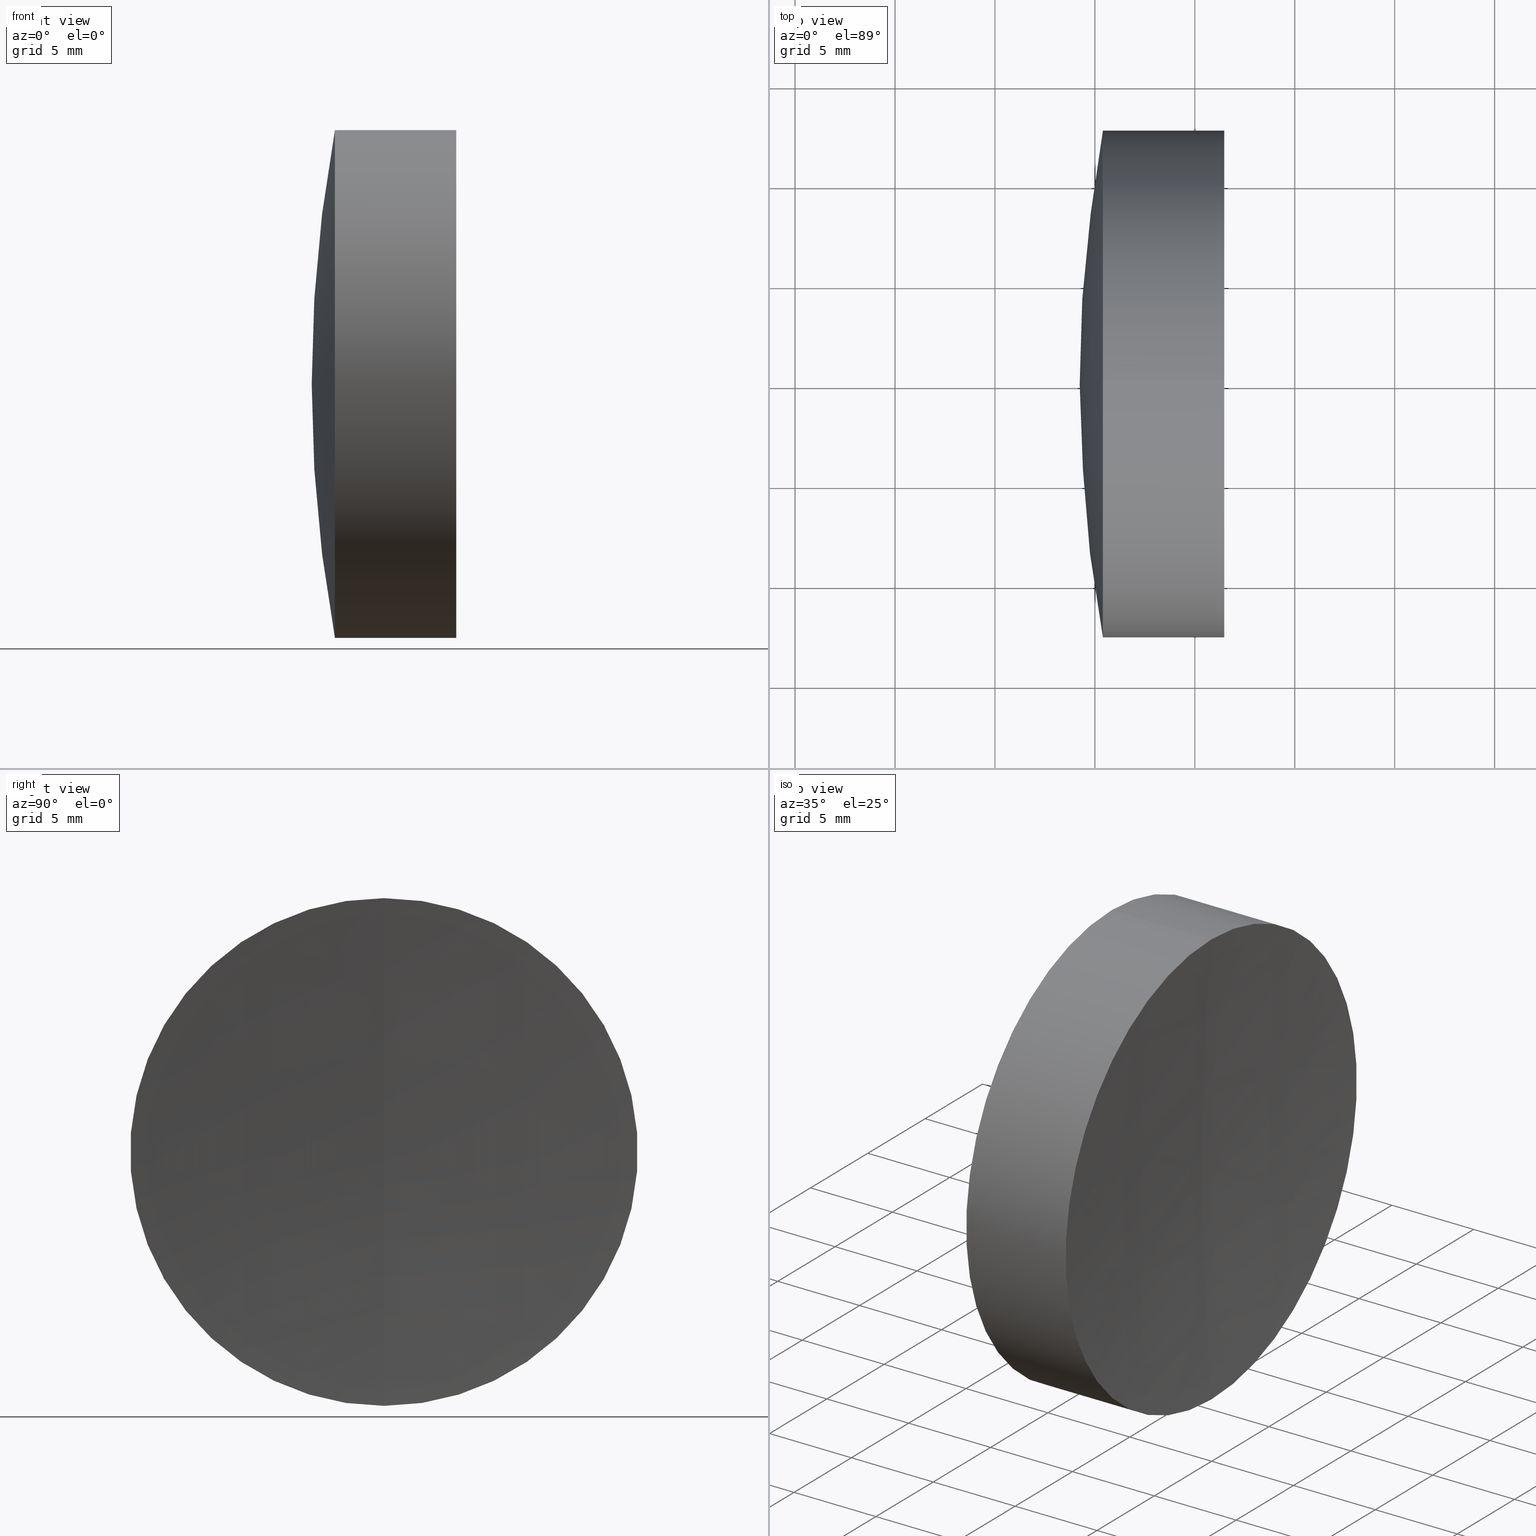
[diagram: canonical four-view strip — front | top / right | iso, engineering-drawing reading convention]
A machine part, canonical four-view strip (front | top / right | iso — engineering-drawing reading convention). The complete STEP part file that produces these views, byte-faithful:
ISO-10303-21;
HEADER;
FILE_DESCRIPTION (( 'STEP AP214' ),
    '1' );
FILE_NAME ('145171.STEP',
    '2019-06-12T01:41:24',
    ( 'user' ),
    ( '΢���й�' ),
    'SwSTEP 2.0',
    'SolidWorks 2016',
    '' );
FILE_SCHEMA (( 'AUTOMOTIVE_DESIGN' ));
ENDSEC;

DATA;
#1 = CARTESIAN_POINT ( 'NONE',  ( 242.3017424857897000, 0.0000000000000000000, 0.0000000000000000000 ) ) ;
#2 = DIRECTION ( 'NONE',  ( -0.0000000000000000000, -1.000000000000000000, -0.0000000000000000000 ) ) ;
#3 = DIRECTION ( 'NONE',  ( 0.0000000000000000000, 0.0000000000000000000, 1.000000000000000000 ) ) ;
#4 = CARTESIAN_POINT ( 'NONE',  ( -4.668257514210329100, 0.0000000000000000000, -3.765318713007809200E-014 ) ) ;
#5 = EDGE_CURVE ( 'NONE', #194, #170, #230, .T. ) ;
#6 = AXIS2_PLACEMENT_3D ( 'NONE', #20, #268, #245 ) ;
#7 = VERTEX_POINT ( 'NONE', #73 ) ;
#8 = DIRECTION ( 'NONE',  ( 0.0000000000000000000, 1.000000000000000000, -0.0000000000000000000 ) ) ;
#9 = EDGE_LOOP ( 'NONE', ( #334, #251, #62, #301 ) ) ;
#10 = VECTOR ( 'NONE', #180, 1000.000000000000000 ) ;
#11 =( NAMED_UNIT ( * ) PLANE_ANGLE_UNIT ( ) SI_UNIT ( $, .RADIAN. ) );
#12 = AXIS2_PLACEMENT_3D ( 'NONE', #238, #54, #212 ) ;
#13 = FILL_AREA_STYLE_COLOUR ( '', #223 ) ;
#14 = CARTESIAN_POINT ( 'NONE',  ( -0.8160621761658039000, 0.0000000000000000000, 12.70000000000001400 ) ) ;
#15 = CIRCLE ( 'NONE', #42, 12.70000000000005300 ) ;
#16 = EDGE_CURVE ( 'NONE', #194, #93, #87, .T. ) ;
#17 = CIRCLE ( 'NONE', #280, 93.10999999999999900 ) ;
#18 = ADVANCED_FACE ( 'NONE', ( #162 ), #291, .T. ) ;
#19 = PRODUCT_CONTEXT ( 'NONE', #161, 'mechanical' ) ;
#20 = CARTESIAN_POINT ( 'NONE',  ( -4.668257514210329100, 0.0000000000000000000, -3.765318713007809200E-014 ) ) ;
#21 = AXIS2_PLACEMENT_3D ( 'NONE', #4, #167, #330 ) ;
#22 = ORIENTED_EDGE ( 'NONE', *, *, #38, .T. ) ;
#23 = ORIENTED_EDGE ( 'NONE', *, *, #214, .F. ) ;
#24 = UNCERTAINTY_MEASURE_WITH_UNIT (LENGTH_MEASURE( 1.000000000000000100E-005 ), #288, 'distance_accuracy_value', 'NONE');
#25 = DIRECTION ( 'NONE',  ( 0.0000000000000000000, 0.0000000000000000000, 1.000000000000000000 ) ) ;
#26 = VECTOR ( 'NONE', #263, 1000.000000000000000 ) ;
#27 = DIRECTION ( 'NONE',  ( 0.0000000000000000000, 1.000000000000000000, 0.0000000000000000000 ) ) ;
#28 = DIRECTION ( 'NONE',  ( 0.0000000000000000000, 0.0000000000000000000, 1.000000000000000000 ) ) ;
#29 =( NAMED_UNIT ( * ) PLANE_ANGLE_UNIT ( ) SI_UNIT ( $, .RADIAN. ) );
#30 = DIRECTION ( 'NONE',  ( 0.0000000000000000000, 1.000000000000000000, 0.0000000000000000000 ) ) ;
#31 = ORIENTED_EDGE ( 'NONE', *, *, #214, .T. ) ;
#32 = FILL_AREA_STYLE_COLOUR ( '', #159 ) ;
#33 = ORIENTED_EDGE ( 'NONE', *, *, #76, .F. ) ;
#34 = ORIENTED_EDGE ( 'NONE', *, *, #5, .F. ) ;
#35 = MANIFOLD_SOLID_BREP ( '��ת2', #333 ) ;
#36 = FACE_OUTER_BOUND ( 'NONE', #246, .T. ) ;
#37 = PRODUCT_DEFINITION ( 'δ֪', '', #59, #285 ) ;
#38 = EDGE_CURVE ( 'NONE', #114, #129, #231, .T. ) ;
#39 = FACE_OUTER_BOUND ( 'NONE', #304, .T. ) ;
#40 = ORIENTED_EDGE ( 'NONE', *, *, #198, .F. ) ;
#41 = CARTESIAN_POINT ( 'NONE',  ( -0.5519199926577972300, 0.0000000000000000000, 0.0000000000000000000 ) ) ;
#42 = AXIS2_PLACEMENT_3D ( 'NONE', #107, #274, #82 ) ;
#43 = CIRCLE ( 'NONE', #248, 12.70000000000001200 ) ;
#44 = SURFACE_STYLE_USAGE ( .BOTH. , #232 ) ;
#45 = CARTESIAN_POINT ( 'NONE',  ( -0.5519199926577972300, 0.0000000000000000000, 12.70000000000005400 ) ) ;
#46 = DIRECTION ( 'NONE',  ( -1.000000000000000000, -0.0000000000000000000, -0.0000000000000000000 ) ) ;
#47 = DIRECTION ( 'NONE',  ( 0.0000000000000000000, 1.224646799147353500E-016, -1.000000000000000000 ) ) ;
#48 = ORIENTED_EDGE ( 'NONE', *, *, #148, .T. ) ;
#49 = ADVANCED_FACE ( 'NONE', ( #96 ), #243, .T. ) ;
#50 = ORIENTED_EDGE ( 'NONE', *, *, #168, .F. ) ;
#51 = EDGE_LOOP ( 'NONE', ( #34, #33, #146 ) ) ;
#52 = DIRECTION ( 'NONE',  ( 0.0000000000000000000, -1.224646799147353200E-016, 1.000000000000000000 ) ) ;
#53 = EDGE_CURVE ( 'NONE', #7, #152, #311, .T. ) ;
#54 = DIRECTION ( 'NONE',  ( 0.0000000000000000000, 0.0000000000000000000, 1.000000000000000000 ) ) ;
#55 = CIRCLE ( 'NONE', #277, 93.10999999999999900 ) ;
#56 =( NAMED_UNIT ( * ) PLANE_ANGLE_UNIT ( ) SI_UNIT ( $, .RADIAN. ) );
#57 = DIRECTION ( 'NONE',  ( 0.0000000000000000000, 0.0000000000000000000, 1.000000000000000000 ) ) ;
#58 = CARTESIAN_POINT ( 'NONE',  ( -4.668257514210329100, 0.0000000000000000000, -3.765318713007809200E-014 ) ) ;
#59 = PRODUCT_DEFINITION_FORMATION_WITH_SPECIFIED_SOURCE ( '�κ�', '', #324, .NOT_KNOWN. ) ;
#60 = SURFACE_STYLE_USAGE ( .BOTH. , #244 ) ;
#61 = DIRECTION ( 'NONE',  ( -1.000000000000000000, -0.0000000000000000000, -0.0000000000000000000 ) ) ;
#62 = ORIENTED_EDGE ( 'NONE', *, *, #253, .F. ) ;
#63 = ORIENTED_EDGE ( 'NONE', *, *, #168, .T. ) ;
#64 = EDGE_CURVE ( 'NONE', #119, #145, #172, .T. ) ;
#65 = CIRCLE ( 'NONE', #225, 12.70000000000001500 ) ;
#66 = STYLED_ITEM ( 'NONE', ( #143 ), #254 ) ;
#67 = MECHANICAL_DESIGN_GEOMETRIC_PRESENTATION_REPRESENTATION (  '', ( #220 ), #83 ) ;
#68 = CARTESIAN_POINT ( 'NONE',  ( 85.40345372146899200, 0.0000000000000000000, 0.0000000000000000000 ) ) ;
#69 = DIRECTION ( 'NONE',  ( 0.0000000000000000000, 0.0000000000000000000, 1.000000000000000000 ) ) ;
#70 = CARTESIAN_POINT ( 'NONE',  ( -0.5519199926577972300, 1.555301434917145300E-015, -12.70000000000005400 ) ) ;
#71 = EDGE_LOOP ( 'NONE', ( #339, #319, #228, #103 ) ) ;
#72 = PRODUCT_RELATED_PRODUCT_CATEGORY ( 'part', '', ( #324 ) ) ;
#73 = CARTESIAN_POINT ( 'NONE',  ( 91.47548615089289100, 0.0000000000000000000, -12.70000000000005400 ) ) ;
#74 = CARTESIAN_POINT ( 'NONE',  ( 91.47548615089287700, 0.0000000000000000000, 0.0000000000000000000 ) ) ;
#75 = ADVANCED_FACE ( 'NONE', ( #36 ), #105, .F. ) ;
#76 = EDGE_CURVE ( 'NONE', #7, #194, #178, .T. ) ;
#77 = PRESENTATION_LAYER_ASSIGNMENT (  '', '', ( #66 ) ) ;
#78 = ORIENTED_EDGE ( 'NONE', *, *, #132, .T. ) ;
#79 = CARTESIAN_POINT ( 'NONE',  ( 87.57155005280489500, 0.0000000000000000000, 0.0000000000000000000 ) ) ;
#80 = DIRECTION ( 'NONE',  ( 0.0000000000000000000, 0.0000000000000000000, 1.000000000000000000 ) ) ;
#81 = DIRECTION ( 'NONE',  ( -0.0000000000000000000, 1.000000000000000000, 1.224646799147353200E-016 ) ) ;
#82 = DIRECTION ( 'NONE',  ( 0.0000000000000000000, 0.0000000000000000000, 1.000000000000000000 ) ) ;
#83 =( GEOMETRIC_REPRESENTATION_CONTEXT ( 3 ) GLOBAL_UNCERTAINTY_ASSIGNED_CONTEXT ( ( #126 ) ) GLOBAL_UNIT_ASSIGNED_CONTEXT ( ( #204, #11, #179 ) ) REPRESENTATION_CONTEXT ( 'NONE', 'WORKASPACE' ) );
#84 = EDGE_CURVE ( 'NONE', #110, #114, #302, .T. ) ;
#85 = CIRCLE ( 'NONE', #315, 12.70000000000005300 ) ;
#86 = EDGE_LOOP ( 'NONE', ( #23, #183, #22 ) ) ;
#87 = LINE ( 'NONE', #45, #10 ) ;
#88 = CARTESIAN_POINT ( 'NONE',  ( -0.8160621761658039000, 1.555301434917140200E-015, -12.70000000000001400 ) ) ;
#89 = EDGE_CURVE ( 'NONE', #7, #170, #325, .T. ) ;
#90 = CARTESIAN_POINT ( 'NONE',  ( 85.40345372146899200, 0.0000000000000000000, 0.0000000000000000000 ) ) ;
#91 = DIRECTION ( 'NONE',  ( 0.0000000000000000000, 0.0000000000000000000, 1.000000000000000000 ) ) ;
#92 = ORIENTED_EDGE ( 'NONE', *, *, #5, .T. ) ;
#93 = VERTEX_POINT ( 'NONE', #279 ) ;
#94 = MECHANICAL_DESIGN_GEOMETRIC_PRESENTATION_REPRESENTATION (  '', ( #66 ), #112 ) ;
#95 = DIRECTION ( 'NONE',  ( 0.0000000000000000000, 1.000000000000000000, -0.0000000000000000000 ) ) ;
#96 = FACE_OUTER_BOUND ( 'NONE', #9, .T. ) ;
#97 = FILL_AREA_STYLE ('',( #13 ) ) ;
#98 = CLOSED_SHELL ( 'NONE', ( #157, #133, #18, #346, #287, #316 ) ) ;
#99 = AXIS2_PLACEMENT_3D ( 'NONE', #282, #95, #261 ) ;
#100 = DIRECTION ( 'NONE',  ( -1.000000000000000000, -0.0000000000000000000, -0.0000000000000000000 ) ) ;
#101 = ADVANCED_FACE ( 'NONE', ( #260 ), #111, .T. ) ;
#102 = ORIENTED_EDGE ( 'NONE', *, *, #84, .F. ) ;
#103 = ORIENTED_EDGE ( 'NONE', *, *, #163, .F. ) ;
#104 =( NAMED_UNIT ( * ) PLANE_ANGLE_UNIT ( ) SI_UNIT ( $, .RADIAN. ) );
#105 = SPHERICAL_SURFACE ( 'NONE', #174, 93.10999999999999900 ) ;
#106 = CARTESIAN_POINT ( 'NONE',  ( -0.8160621761658039000, 0.0000000000000000000, 0.0000000000000000000 ) ) ;
#107 = CARTESIAN_POINT ( 'NONE',  ( 87.57155005280489500, 0.0000000000000000000, 0.0000000000000000000 ) ) ;
#108 = EDGE_CURVE ( 'NONE', #114, #110, #43, .T. ) ;
#109 = FACE_OUTER_BOUND ( 'NONE', #283, .T. ) ;
#110 = VERTEX_POINT ( 'NONE', #147 ) ;
#111 = CYLINDRICAL_SURFACE ( 'NONE', #265, 12.70000000000005400 ) ;
#112 =( GEOMETRIC_REPRESENTATION_CONTEXT ( 3 ) GLOBAL_UNCERTAINTY_ASSIGNED_CONTEXT ( ( #190 ) ) GLOBAL_UNIT_ASSIGNED_CONTEXT ( ( #219, #29, #192 ) ) REPRESENTATION_CONTEXT ( 'NONE', 'WORKASPACE' ) );
#113 = CIRCLE ( 'NONE', #342, 70.00000000000001400 ) ;
#114 = VERTEX_POINT ( 'NONE', #116 ) ;
#115 = AXIS2_PLACEMENT_3D ( 'NONE', #340, #149, #305 ) ;
#116 = CARTESIAN_POINT ( 'NONE',  ( 85.40345372146899200, 0.0000000000000000000, -12.69999999999995800 ) ) ;
#117 = VERTEX_POINT ( 'NONE', #317 ) ;
#118 = EDGE_LOOP ( 'NONE', ( #50, #169, #222 ) ) ;
#119 = VERTEX_POINT ( 'NONE', #278 ) ;
#120 = DIRECTION ( 'NONE',  ( -1.000000000000000000, -0.0000000000000000000, -0.0000000000000000000 ) ) ;
#121 = CIRCLE ( 'NONE', #321, 12.70000000000005400 ) ;
#122 = FACE_OUTER_BOUND ( 'NONE', #51, .T. ) ;
#123 = CARTESIAN_POINT ( 'NONE',  ( 87.57155005280489500, 0.0000000000000000000, 0.0000000000000000000 ) ) ;
#124 = EDGE_CURVE ( 'NONE', #119, #114, #134, .T. ) ;
#125 = DIRECTION ( 'NONE',  ( -1.000000000000000000, -0.0000000000000000000, -0.0000000000000000000 ) ) ;
#126 = UNCERTAINTY_MEASURE_WITH_UNIT (LENGTH_MEASURE( 1.000000000000000100E-005 ), #204, 'distance_accuracy_value', 'NONE');
#127 = DIRECTION ( 'NONE',  ( 0.0000000000000000000, 0.0000000000000000000, -1.000000000000000000 ) ) ;
#128 = DIRECTION ( 'NONE',  ( -1.000000000000000000, -0.0000000000000000000, -0.0000000000000000000 ) ) ;
#129 = VERTEX_POINT ( 'NONE', #205 ) ;
#130 = VERTEX_POINT ( 'NONE', #345 ) ;
#131 = DIRECTION ( 'NONE',  ( 0.0000000000000000000, 0.0000000000000000000, 1.000000000000000000 ) ) ;
#132 = EDGE_CURVE ( 'NONE', #145, #110, #336, .T. ) ;
#133 = ADVANCED_FACE ( 'NONE', ( #252 ), #341, .T. ) ;
#134 = LINE ( 'NONE', #88, #270 ) ;
#135 = SURFACE_STYLE_USAGE ( .BOTH. , #322 ) ;
#136 = CARTESIAN_POINT ( 'NONE',  ( 91.47548615089289100, -1.555301434917145500E-015, 12.70000000000005400 ) ) ;
#137 = FILL_AREA_STYLE ('',( #292 ) ) ;
#138 = DIRECTION ( 'NONE',  ( -0.0000000000000000000, -1.000000000000000000, -0.0000000000000000000 ) ) ;
#139 = CARTESIAN_POINT ( 'NONE',  ( 87.57155005280489500, 1.555301434917143000E-015, -12.70000000000007400 ) ) ;
#140 = FILL_AREA_STYLE ('',( #32 ) ) ;
#141 = PRODUCT_DEFINITION_SHAPE ( 'NONE', 'NONE',  #37 ) ;
#142 = AXIS2_PLACEMENT_3D ( 'NONE', #123, #281, #91 ) ;
#143 = PRESENTATION_STYLE_ASSIGNMENT (( #60 ) ) ;
#144 = EDGE_CURVE ( 'NONE', #130, #152, #55, .T. ) ;
#145 = VERTEX_POINT ( 'NONE', #329 ) ;
#146 = ORIENTED_EDGE ( 'NONE', *, *, #89, .T. ) ;
#147 = CARTESIAN_POINT ( 'NONE',  ( 85.40345372146899200, -1.555301434917133500E-015, 12.70000000000001000 ) ) ;
#148 = EDGE_CURVE ( 'NONE', #145, #119, #65, .T. ) ;
#149 = DIRECTION ( 'NONE',  ( -1.000000000000000000, -0.0000000000000000000, -0.0000000000000000000 ) ) ;
#150 = PRESENTATION_STYLE_ASSIGNMENT (( #135 ) ) ;
#151 = AXIS2_PLACEMENT_3D ( 'NONE', #166, #138, #294 ) ;
#152 = VERTEX_POINT ( 'NONE', #139 ) ;
#153 = CARTESIAN_POINT ( 'NONE',  ( -0.5519199926577972300, 0.0000000000000000000, 0.0000000000000000000 ) ) ;
#154 = AXIS2_PLACEMENT_3D ( 'NONE', #153, #125, #284 ) ;
#155 = FACE_OUTER_BOUND ( 'NONE', #118, .T. ) ;
#156 = CARTESIAN_POINT ( 'NONE',  ( 154.2417424857897000, 0.0000000000000000000, 5.060151870744320700E-014 ) ) ;
#157 = ADVANCED_FACE ( 'NONE', ( #155 ), #202, .T. ) ;
#158 = DIRECTION ( 'NONE',  ( -0.0000000000000000000, 1.000000000000000000, 1.224646799147353200E-016 ) ) ;
#159 = COLOUR_RGB ( '',1.000000000000000000, 1.000000000000000000, 1.000000000000000000 ) ;
#160 = ORIENTED_EDGE ( 'NONE', *, *, #229, .T. ) ;
#161 = APPLICATION_CONTEXT ( 'automotive_design' ) ;
#162 = FACE_OUTER_BOUND ( 'NONE', #300, .T. ) ;
#163 = EDGE_CURVE ( 'NONE', #152, #93, #85, .T. ) ;
#164 = DIRECTION ( 'NONE',  ( 0.0000000000000000000, 0.0000000000000000000, -1.000000000000000000 ) ) ;
#165 = CARTESIAN_POINT ( 'NONE',  ( -4.668257514210329100, 0.0000000000000000000, -3.765318713007809200E-014 ) ) ;
#166 = CARTESIAN_POINT ( 'NONE',  ( 242.3017424857897000, 0.0000000000000000000, 0.0000000000000000000 ) ) ;
#167 = DIRECTION ( 'NONE',  ( 0.0000000000000000000, -1.000000000000000000, 0.0000000000000000000 ) ) ;
#168 = EDGE_CURVE ( 'NONE', #117, #145, #286, .T. ) ;
#169 = ORIENTED_EDGE ( 'NONE', *, *, #184, .T. ) ;
#170 = VERTEX_POINT ( 'NONE', #242 ) ;
#171 =( GEOMETRIC_REPRESENTATION_CONTEXT ( 3 ) GLOBAL_UNCERTAINTY_ASSIGNED_CONTEXT ( ( #275 ) ) GLOBAL_UNIT_ASSIGNED_CONTEXT ( ( #241, #56, #213 ) ) REPRESENTATION_CONTEXT ( 'NONE', 'WORKASPACE' ) );
#172 = CIRCLE ( 'NONE', #142, 12.70000000000001500 ) ;
#173 = ORIENTED_EDGE ( 'NONE', *, *, #163, .T. ) ;
#174 = AXIS2_PLACEMENT_3D ( 'NONE', #343, #309, #259 ) ;
#175 = DIRECTION ( 'NONE',  ( 0.0000000000000000000, 0.0000000000000000000, 1.000000000000000000 ) ) ;
#176 = FACE_OUTER_BOUND ( 'NONE', #86, .T. ) ;
#177 = EDGE_LOOP ( 'NONE', ( #40, #92, #235 ) ) ;
#178 = CIRCLE ( 'NONE', #115, 12.70000000000005400 ) ;
#179 =( NAMED_UNIT ( * ) SI_UNIT ( $, .STERADIAN. ) SOLID_ANGLE_UNIT ( ) );
#180 = DIRECTION ( 'NONE',  ( -1.000000000000000000, -0.0000000000000000000, -0.0000000000000000000 ) ) ;
#181 = ADVANCED_FACE ( 'NONE', ( #209 ), #197, .F. ) ;
#182 = SPHERICAL_SURFACE ( 'NONE', #224, 70.00000000000001400 ) ;
#183 = ORIENTED_EDGE ( 'NONE', *, *, #84, .T. ) ;
#184 = EDGE_CURVE ( 'NONE', #117, #119, #17, .T. ) ;
#185 = APPLICATION_CONTEXT ( 'automotive_design' ) ;
#186 = VECTOR ( 'NONE', #100, 1000.000000000000000 ) ;
#187 = APPLICATION_PROTOCOL_DEFINITION ( 'draft international standard', 'automotive_design', 1998, #161 ) ;
#188 = CARTESIAN_POINT ( 'NONE',  ( -4.668257514210329100, 0.0000000000000000000, -3.765318713007809200E-014 ) ) ;
#189 = AXIS2_PLACEMENT_3D ( 'NONE', #106, #328, #80 ) ;
#190 = UNCERTAINTY_MEASURE_WITH_UNIT (LENGTH_MEASURE( 1.000000000000000100E-005 ), #219, 'distance_accuracy_value', 'NONE');
#191 = DIRECTION ( 'NONE',  ( -1.000000000000000000, -0.0000000000000000000, -0.0000000000000000000 ) ) ;
#192 =( NAMED_UNIT ( * ) SI_UNIT ( $, .STERADIAN. ) SOLID_ANGLE_UNIT ( ) );
#193 = AXIS2_PLACEMENT_3D ( 'NONE', #90, #256, #69 ) ;
#194 = VERTEX_POINT ( 'NONE', #136 ) ;
#195 = ORIENTED_EDGE ( 'NONE', *, *, #144, .F. ) ;
#196 = ORIENTED_EDGE ( 'NONE', *, *, #108, .T. ) ;
#197 = SPHERICAL_SURFACE ( 'NONE', #298, 151.3600000000000100 ) ;
#198 = EDGE_CURVE ( 'NONE', #194, #7, #121, .T. ) ;
#199 = ORIENTED_EDGE ( 'NONE', *, *, #253, .T. ) ;
#200 = CARTESIAN_POINT ( 'NONE',  ( 242.3017424857897000, 0.0000000000000000000, 0.0000000000000000000 ) ) ;
#201 = AXIS2_PLACEMENT_3D ( 'NONE', #233, #264, #47 ) ;
#202 = SPHERICAL_SURFACE ( 'NONE', #250, 93.10999999999999900 ) ;
#203 = AXIS2_PLACEMENT_3D ( 'NONE', #58, #27, #272 ) ;
#204 =( LENGTH_UNIT ( ) NAMED_UNIT ( * ) SI_UNIT ( .MILLI., .METRE. ) );
#205 = CARTESIAN_POINT ( 'NONE',  ( 84.24174248578968600, 0.0000000000000000000, 4.631525491042747000E-014 ) ) ;
#206 = DIRECTION ( 'NONE',  ( 0.0000000000000000000, 1.224646799147353200E-016, -1.000000000000000000 ) ) ;
#207 = AXIS2_PLACEMENT_3D ( 'NONE', #200, #8, #175 ) ;
#208 = EDGE_LOOP ( 'NONE', ( #48, #338, #102, #332 ) ) ;
#209 = FACE_OUTER_BOUND ( 'NONE', #177, .T. ) ;
#210 = CARTESIAN_POINT ( 'NONE',  ( -0.8160621761658039000, 0.0000000000000000000, 0.0000000000000000000 ) ) ;
#211 = ADVANCED_FACE ( 'NONE', ( #335 ), #247, .F. ) ;
#212 = DIRECTION ( 'NONE',  ( 1.000000000000000000, 0.0000000000000000000, 0.0000000000000000000 ) ) ;
#213 =( NAMED_UNIT ( * ) SI_UNIT ( $, .STERADIAN. ) SOLID_ANGLE_UNIT ( ) );
#214 = EDGE_CURVE ( 'NONE', #110, #129, #113, .T. ) ;
#215 = DIRECTION ( 'NONE',  ( -1.000000000000000000, -0.0000000000000000000, -0.0000000000000000000 ) ) ;
#216 = ORIENTED_EDGE ( 'NONE', *, *, #144, .T. ) ;
#217 = DIRECTION ( 'NONE',  ( 0.0000000000000000000, 0.0000000000000000000, -1.000000000000000000 ) ) ;
#218 = CARTESIAN_POINT ( 'NONE',  ( 87.57155005280489500, 0.0000000000000000000, 0.0000000000000000000 ) ) ;
#219 =( LENGTH_UNIT ( ) NAMED_UNIT ( * ) SI_UNIT ( .MILLI., .METRE. ) );
#220 = STYLED_ITEM ( 'NONE', ( #308 ), #35 ) ;
#221 = SURFACE_STYLE_FILL_AREA ( #137 ) ;
#222 = ORIENTED_EDGE ( 'NONE', *, *, #148, .F. ) ;
#223 = COLOUR_RGB ( '',1.000000000000000000, 1.000000000000000000, 1.000000000000000000 ) ;
#224 = AXIS2_PLACEMENT_3D ( 'NONE', #326, #2, #217 ) ;
#225 = AXIS2_PLACEMENT_3D ( 'NONE', #218, #191, #28 ) ;
#226 = DIRECTION ( 'NONE',  ( -1.000000000000000000, -0.0000000000000000000, -0.0000000000000000000 ) ) ;
#227 = DIRECTION ( 'NONE',  ( 0.0000000000000000000, 0.0000000000000000000, 1.000000000000000000 ) ) ;
#228 = ORIENTED_EDGE ( 'NONE', *, *, #16, .T. ) ;
#229 = EDGE_CURVE ( 'NONE', #130, #93, #299, .T. ) ;
#230 = CIRCLE ( 'NONE', #201, 151.3600000000000100 ) ;
#231 = CIRCLE ( 'NONE', #99, 70.00000000000001400 ) ;
#232 = SURFACE_SIDE_STYLE ('',( #239 ) ) ;
#233 = CARTESIAN_POINT ( 'NONE',  ( 242.3017424857897000, 0.0000000000000000000, 0.0000000000000000000 ) ) ;
#234 = DIRECTION ( 'NONE',  ( 0.0000000000000000000, 0.0000000000000000000, 1.000000000000000000 ) ) ;
#235 = ORIENTED_EDGE ( 'NONE', *, *, #89, .F. ) ;
#236 = SURFACE_STYLE_FILL_AREA ( #140 ) ;
#237 = AXIS2_PLACEMENT_3D ( 'NONE', #313, #344, #127 ) ;
#238 = CARTESIAN_POINT ( 'NONE',  ( 0.0000000000000000000, 0.0000000000000000000, 0.0000000000000000000 ) ) ;
#239 = SURFACE_STYLE_FILL_AREA ( #97 ) ;
#240 = DIRECTION ( 'NONE',  ( 0.0000000000000000000, 0.0000000000000000000, -1.000000000000000000 ) ) ;
#241 =( LENGTH_UNIT ( ) NAMED_UNIT ( * ) SI_UNIT ( .MILLI., .METRE. ) );
#242 = CARTESIAN_POINT ( 'NONE',  ( 90.94174248578967500, 0.0000000000000000000, -9.268126975947171000E-015 ) ) ;
#243 = CYLINDRICAL_SURFACE ( 'NONE', #154, 12.70000000000005400 ) ;
#244 = SURFACE_SIDE_STYLE ('',( #236 ) ) ;
#245 = DIRECTION ( 'NONE',  ( 0.0000000000000000000, 0.0000000000000000000, 1.000000000000000000 ) ) ;
#246 = EDGE_LOOP ( 'NONE', ( #195, #160, #199 ) ) ;
#247 = SPHERICAL_SURFACE ( 'NONE', #6, 93.10999999999999900 ) ;
#248 = AXIS2_PLACEMENT_3D ( 'NONE', #68, #226, #234 ) ;
#249 = CYLINDRICAL_SURFACE ( 'NONE', #189, 12.70000000000001400 ) ;
#250 = AXIS2_PLACEMENT_3D ( 'NONE', #165, #30, #3 ) ;
#251 = ORIENTED_EDGE ( 'NONE', *, *, #53, .T. ) ;
#252 = FACE_OUTER_BOUND ( 'NONE', #208, .T. ) ;
#253 = EDGE_CURVE ( 'NONE', #93, #152, #15, .T. ) ;
#254 = MANIFOLD_SOLID_BREP ( '��ת1', #98 ) ;
#255 = ORIENTED_EDGE ( 'NONE', *, *, #38, .F. ) ;
#256 = DIRECTION ( 'NONE',  ( -1.000000000000000000, -0.0000000000000000000, -0.0000000000000000000 ) ) ;
#257 = ORIENTED_EDGE ( 'NONE', *, *, #229, .F. ) ;
#258 = PRESENTATION_LAYER_ASSIGNMENT (  '', '', ( #220 ) ) ;
#259 = DIRECTION ( 'NONE',  ( 0.0000000000000000000, 0.0000000000000000000, 1.000000000000000000 ) ) ;
#260 = FACE_OUTER_BOUND ( 'NONE', #71, .T. ) ;
#261 = DIRECTION ( 'NONE',  ( 0.0000000000000000000, 0.0000000000000000000, 1.000000000000000000 ) ) ;
#262 = STYLED_ITEM ( 'NONE', ( #150 ), #310 ) ;
#263 = DIRECTION ( 'NONE',  ( -1.000000000000000000, -0.0000000000000000000, -0.0000000000000000000 ) ) ;
#264 = DIRECTION ( 'NONE',  ( 0.0000000000000000000, -1.000000000000000000, -1.224646799147353200E-016 ) ) ;
#265 = AXIS2_PLACEMENT_3D ( 'NONE', #41, #120, #227 ) ;
#266 = ORIENTED_EDGE ( 'NONE', *, *, #64, .T. ) ;
#267 = ADVANCED_FACE ( 'NONE', ( #122 ), #331, .F. ) ;
#268 = DIRECTION ( 'NONE',  ( 0.0000000000000000000, 1.000000000000000000, 0.0000000000000000000 ) ) ;
#269 = AXIS2_PLACEMENT_3D ( 'NONE', #188, #323, #164 ) ;
#270 = VECTOR ( 'NONE', #46, 1000.000000000000000 ) ;
#271 =( NAMED_UNIT ( * ) SI_UNIT ( $, .STERADIAN. ) SOLID_ANGLE_UNIT ( ) );
#272 = DIRECTION ( 'NONE',  ( 0.0000000000000000000, 0.0000000000000000000, 1.000000000000000000 ) ) ;
#273 = DIRECTION ( 'NONE',  ( 0.0000000000000000000, -1.224646799147353200E-016, 1.000000000000000000 ) ) ;
#274 = DIRECTION ( 'NONE',  ( -1.000000000000000000, -0.0000000000000000000, -0.0000000000000000000 ) ) ;
#275 = UNCERTAINTY_MEASURE_WITH_UNIT (LENGTH_MEASURE( 1.000000000000000100E-005 ), #241, 'distance_accuracy_value', 'NONE');
#276 = PRESENTATION_LAYER_ASSIGNMENT (  '', '', ( #262 ) ) ;
#277 = AXIS2_PLACEMENT_3D ( 'NONE', #295, #81, #273 ) ;
#278 = CARTESIAN_POINT ( 'NONE',  ( 87.57155005280489500, 1.555301434917140600E-015, -12.70000000000001700 ) ) ;
#279 = CARTESIAN_POINT ( 'NONE',  ( 87.57155005280489500, 0.0000000000000000000, 12.70000000000003700 ) ) ;
#280 = AXIS2_PLACEMENT_3D ( 'NONE', #320, #158, #52 ) ;
#281 = DIRECTION ( 'NONE',  ( -1.000000000000000000, -0.0000000000000000000, -0.0000000000000000000 ) ) ;
#282 = CARTESIAN_POINT ( 'NONE',  ( 154.2417424857897000, 0.0000000000000000000, 5.060151870744320700E-014 ) ) ;
#283 = EDGE_LOOP ( 'NONE', ( #337, #63, #307 ) ) ;
#284 = DIRECTION ( 'NONE',  ( 0.0000000000000000000, 0.0000000000000000000, 1.000000000000000000 ) ) ;
#285 = PRODUCT_DEFINITION_CONTEXT ( 'detailed design', #185, 'design' ) ;
#286 = CIRCLE ( 'NONE', #269, 93.10999999999999900 ) ;
#287 = ADVANCED_FACE ( 'NONE', ( #39 ), #249, .T. ) ;
#288 =( LENGTH_UNIT ( ) NAMED_UNIT ( * ) SI_UNIT ( .MILLI., .METRE. ) );
#289 = COLOUR_RGB ( '',1.000000000000000000, 1.000000000000000000, 1.000000000000000000 ) ;
#290 = EDGE_LOOP ( 'NONE', ( #257, #216, #173 ) ) ;
#291 = SPHERICAL_SURFACE ( 'NONE', #237, 70.00000000000001400 ) ;
#292 = FILL_AREA_STYLE_COLOUR ( '', #289 ) ;
#293 = MECHANICAL_DESIGN_GEOMETRIC_PRESENTATION_REPRESENTATION (  '', ( #262 ), #312 ) ;
#294 = DIRECTION ( 'NONE',  ( 0.0000000000000000000, 0.0000000000000000000, -1.000000000000000000 ) ) ;
#295 = CARTESIAN_POINT ( 'NONE',  ( -4.668257514210329100, 0.0000000000000000000, -3.765318713007809200E-014 ) ) ;
#296 = ORIENTED_EDGE ( 'NONE', *, *, #124, .F. ) ;
#297 = AXIS2_PLACEMENT_3D ( 'NONE', #210, #128, #131 ) ;
#298 = AXIS2_PLACEMENT_3D ( 'NONE', #1, #327, #240 ) ;
#299 = CIRCLE ( 'NONE', #21, 93.10999999999999900 ) ;
#300 = EDGE_LOOP ( 'NONE', ( #196, #31, #255 ) ) ;
#301 = ORIENTED_EDGE ( 'NONE', *, *, #16, .F. ) ;
#302 = CIRCLE ( 'NONE', #193, 12.70000000000001200 ) ;
#303 = ORIENTED_EDGE ( 'NONE', *, *, #108, .F. ) ;
#304 = EDGE_LOOP ( 'NONE', ( #296, #266, #78, #303 ) ) ;
#305 = DIRECTION ( 'NONE',  ( 0.0000000000000000000, 0.0000000000000000000, 1.000000000000000000 ) ) ;
#306 = SHAPE_DEFINITION_REPRESENTATION ( #141, #310 ) ;
#307 = ORIENTED_EDGE ( 'NONE', *, *, #64, .F. ) ;
#308 = PRESENTATION_STYLE_ASSIGNMENT (( #44 ) ) ;
#309 = DIRECTION ( 'NONE',  ( 0.0000000000000000000, 1.000000000000000000, 0.0000000000000000000 ) ) ;
#310 = ADVANCED_BREP_SHAPE_REPRESENTATION ( '145171', ( #254, #35, #12 ), #171 ) ;
#311 = LINE ( 'NONE', #70, #26 ) ;
#312 =( GEOMETRIC_REPRESENTATION_CONTEXT ( 3 ) GLOBAL_UNCERTAINTY_ASSIGNED_CONTEXT ( ( #24 ) ) GLOBAL_UNIT_ASSIGNED_CONTEXT ( ( #288, #104, #271 ) ) REPRESENTATION_CONTEXT ( 'NONE', 'WORKASPACE' ) );
#313 = CARTESIAN_POINT ( 'NONE',  ( 154.2417424857897000, 0.0000000000000000000, 5.060151870744320700E-014 ) ) ;
#314 = DIRECTION ( 'NONE',  ( 0.0000000000000000000, -1.000000000000000000, -1.224646799147353200E-016 ) ) ;
#315 = AXIS2_PLACEMENT_3D ( 'NONE', #79, #215, #57 ) ;
#316 = ADVANCED_FACE ( 'NONE', ( #109 ), #318, .T. ) ;
#317 = CARTESIAN_POINT ( 'NONE',  ( 88.44174248578967500, 0.0000000000000000000, -3.195184395664758900E-014 ) ) ;
#318 = SPHERICAL_SURFACE ( 'NONE', #203, 93.10999999999999900 ) ;
#319 = ORIENTED_EDGE ( 'NONE', *, *, #76, .T. ) ;
#320 = CARTESIAN_POINT ( 'NONE',  ( -4.668257514210329100, 0.0000000000000000000, -3.765318713007809200E-014 ) ) ;
#321 = AXIS2_PLACEMENT_3D ( 'NONE', #74, #61, #25 ) ;
#322 = SURFACE_SIDE_STYLE ('',( #221 ) ) ;
#323 = DIRECTION ( 'NONE',  ( 0.0000000000000000000, -1.000000000000000000, 0.0000000000000000000 ) ) ;
#324 = PRODUCT ( '145171', '145171', '', ( #19 ) ) ;
#325 = CIRCLE ( 'NONE', #207, 151.3600000000000100 ) ;
#326 = CARTESIAN_POINT ( 'NONE',  ( 154.2417424857897000, 0.0000000000000000000, 5.060151870744320700E-014 ) ) ;
#327 = DIRECTION ( 'NONE',  ( -0.0000000000000000000, -1.000000000000000000, -0.0000000000000000000 ) ) ;
#328 = DIRECTION ( 'NONE',  ( -1.000000000000000000, -0.0000000000000000000, -0.0000000000000000000 ) ) ;
#329 = CARTESIAN_POINT ( 'NONE',  ( 87.57155005280489500, 0.0000000000000000000, 12.70000000000001500 ) ) ;
#330 = DIRECTION ( 'NONE',  ( 0.0000000000000000000, 0.0000000000000000000, -1.000000000000000000 ) ) ;
#331 = SPHERICAL_SURFACE ( 'NONE', #151, 151.3600000000000100 ) ;
#332 = ORIENTED_EDGE ( 'NONE', *, *, #132, .F. ) ;
#333 = CLOSED_SHELL ( 'NONE', ( #49, #181, #211, #75, #267, #101 ) ) ;
#334 = ORIENTED_EDGE ( 'NONE', *, *, #198, .T. ) ;
#335 = FACE_OUTER_BOUND ( 'NONE', #290, .T. ) ;
#336 = LINE ( 'NONE', #14, #186 ) ;
#337 = ORIENTED_EDGE ( 'NONE', *, *, #184, .F. ) ;
#338 = ORIENTED_EDGE ( 'NONE', *, *, #124, .T. ) ;
#339 = ORIENTED_EDGE ( 'NONE', *, *, #53, .F. ) ;
#340 = CARTESIAN_POINT ( 'NONE',  ( 91.47548615089287700, 0.0000000000000000000, 0.0000000000000000000 ) ) ;
#341 = CYLINDRICAL_SURFACE ( 'NONE', #297, 12.70000000000001400 ) ;
#342 = AXIS2_PLACEMENT_3D ( 'NONE', #156, #314, #206 ) ;
#343 = CARTESIAN_POINT ( 'NONE',  ( -4.668257514210329100, 0.0000000000000000000, -3.765318713007809200E-014 ) ) ;
#344 = DIRECTION ( 'NONE',  ( -0.0000000000000000000, -1.000000000000000000, -0.0000000000000000000 ) ) ;
#345 = CARTESIAN_POINT ( 'NONE',  ( 88.44174248578967500, 0.0000000000000000000, -3.195184395664758900E-014 ) ) ;
#346 = ADVANCED_FACE ( 'NONE', ( #176 ), #182, .T. ) ;
#347 = APPLICATION_PROTOCOL_DEFINITION ( 'draft international standard', 'automotive_design', 1998, #185 ) ;
ENDSEC;
END-ISO-10303-21;
